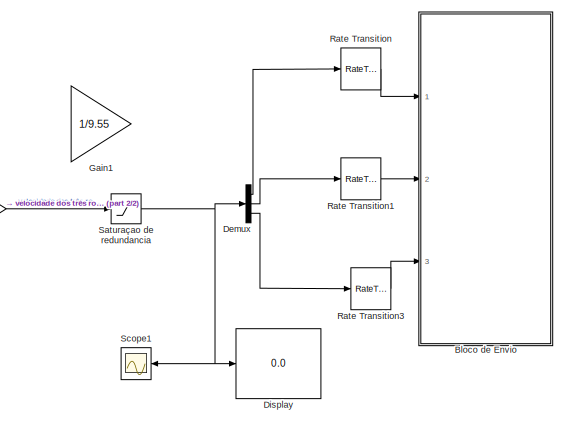
[diagram: root canvas - part 1/2, right side, full height]
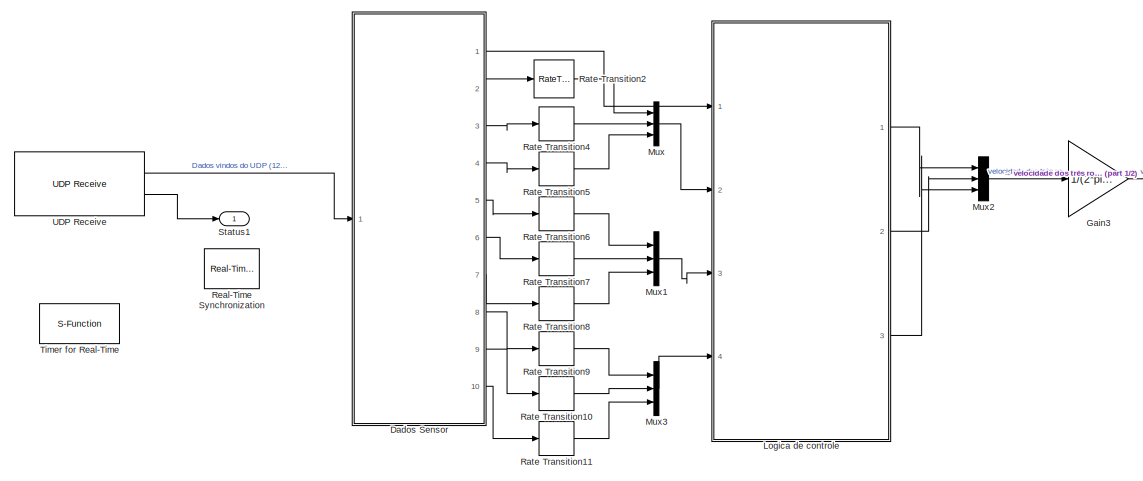
[diagram: root canvas - part 2/2, center side, full height]
MODEL slx_afa9e0316c3a
KIND model
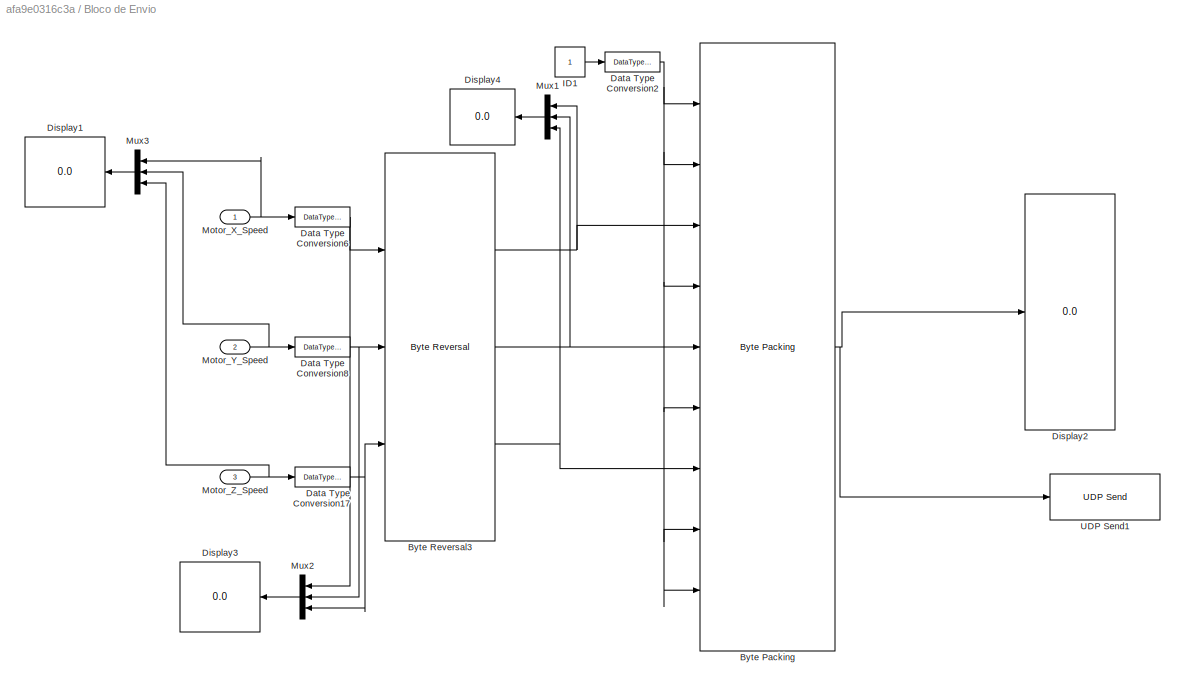
BLOCK [SubSystem] Bloco de Envio
  Ports = [3]
  RequestExecContextInheritance = off
BLOCK [Reference] Bloco de Envio/Byte Packing   REF=xpcutilitieslib/Byte Packing 
  MaskAlignment = 1
  MaskPackedDataType = uint8
  MaskUnpackedDataTypes = {'uint8','uint8','int16','uint8','int16','uint8','int16','uint8', 'uint8'}
  Ports = [9, 1]
  SourceBlock = xpcutilitieslib/Byte Packing
  SourceType = xpcbytepacking
BLOCK [Reference] Bloco de Envio/Byte Reversal3  REF=etargetslib/Byte Reversal
  Ports = [3, 3]
  SourceBlock = etargetslib/Byte Reversal
  SourceType = Byte Reversal
  numInp = 3
BLOCK [DataTypeConversion] Bloco de Envio/Data Type Conversion17
  OutDataTypeStr = int16
  RndMeth = Floor
BLOCK [DataTypeConversion] Bloco de Envio/Data Type Conversion2
  OutDataTypeStr = uint8
  RndMeth = Floor
BLOCK [DataTypeConversion] Bloco de Envio/Data Type Conversion6
  OutDataTypeStr = int16
  RndMeth = Floor
BLOCK [DataTypeConversion] Bloco de Envio/Data Type Conversion8
  OutDataTypeStr = int16
  RndMeth = Floor
BLOCK [Display] Bloco de Envio/Display1
  Decimation = 1
  Ports = [1]
BLOCK [Display] Bloco de Envio/Display2
  Decimation = 1
  Ports = [1]
BLOCK [Display] Bloco de Envio/Display3
  Decimation = 1
  Format = hex (Stored Integer)
  Ports = [1]
BLOCK [Display] Bloco de Envio/Display4
  Decimation = 1
  Format = hex (Stored Integer)
  Ports = [1]
BLOCK [Constant] Bloco de Envio/ID1
  OutDataTypeStr = uint8
BLOCK [Inport] Bloco de Envio/Motor_X_Speed
  IconDisplay = Port number
BLOCK [Inport] Bloco de Envio/Motor_Y_Speed
  IconDisplay = Port number
  Port = 2
BLOCK [Inport] Bloco de Envio/Motor_Z_Speed
  IconDisplay = Port number
  Port = 3
BLOCK [Mux] Bloco de Envio/Mux1
  DisplayOption = bar
  Inputs = 3
  Ports = [3, 1]
BLOCK [Mux] Bloco de Envio/Mux2
  DisplayOption = bar
  Inputs = 3
  Ports = [3, 1]
BLOCK [Mux] Bloco de Envio/Mux3
  DisplayOption = bar
  Inputs = 3
  Ports = [3, 1]
BLOCK [Reference] Bloco de Envio/UDP Send1  REF=instrumentlib/UDP Send
  ByteOrder = LittleEndian
  EnableBlockingMode = off
  Host = 172.16.0.62
  LocalPort = -1
  Port = 35308
  Ports = [1]
  SourceBlock = instrumentlib/UDP Send
  SourceType = UDP Send
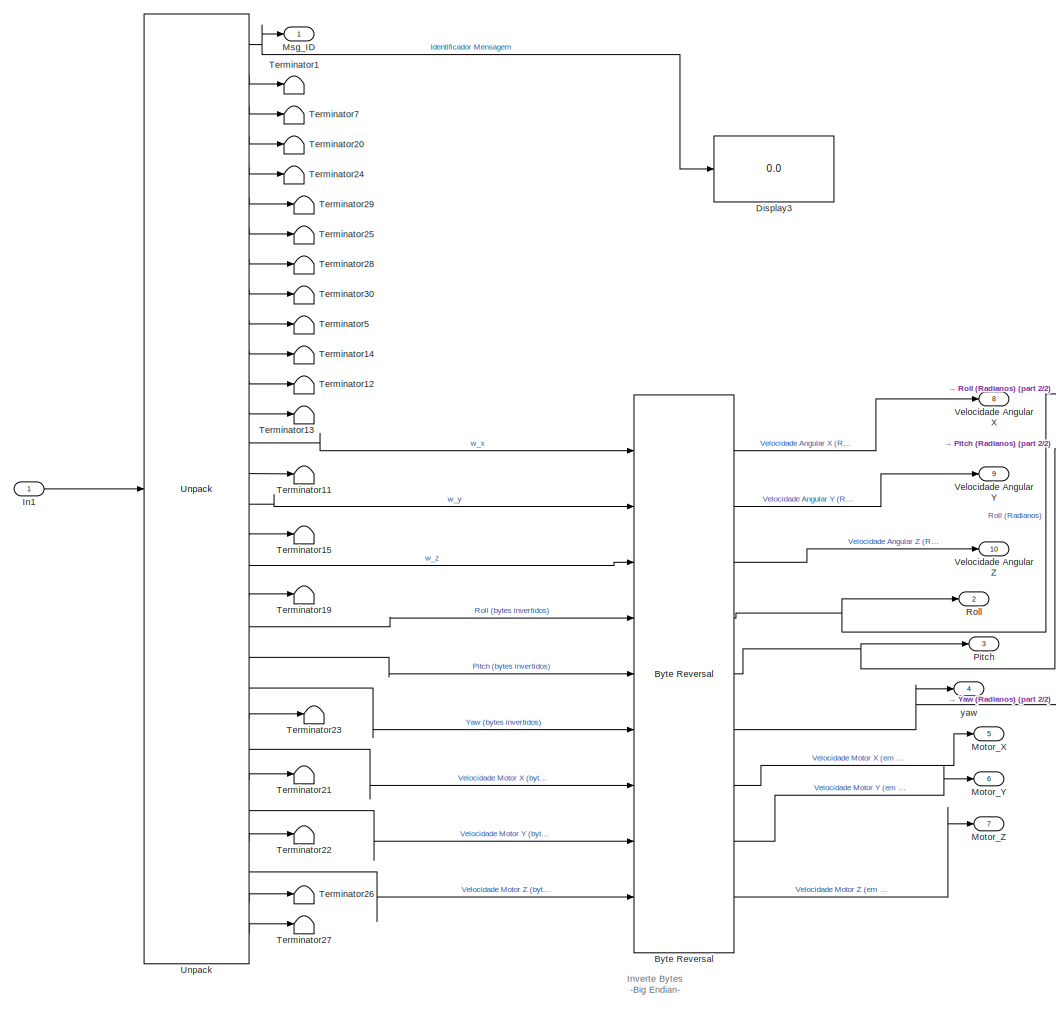
[diagram: Dados Sensor - part 1/2, most of the canvas]
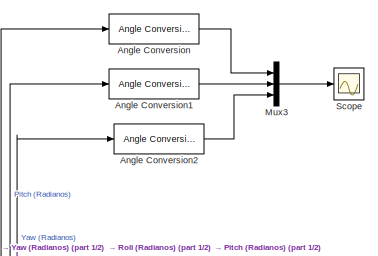
[diagram: Dados Sensor - part 2/2, middle right region]
BLOCK [SubSystem] Dados Sensor
  Ports = [1, 10]
  RequestExecContextInheritance = off
BLOCK [Reference] Dados Sensor/Angle Conversion  REF=aerolibconvert2/Angle Conversion
  IU = rad
  OU = deg
  Ports = [1, 1]
  SourceBlock = aerolibconvert2/Angle Conversion
  SourceType = Angle Conversion
BLOCK [Reference] Dados Sensor/Angle Conversion1  REF=aerolibconvert2/Angle Conversion
  IU = rad
  OU = deg
  Ports = [1, 1]
  SourceBlock = aerolibconvert2/Angle Conversion
  SourceType = Angle Conversion
BLOCK [Reference] Dados Sensor/Angle Conversion2  REF=aerolibconvert2/Angle Conversion
  IU = rad
  OU = deg
  Ports = [1, 1]
  SourceBlock = aerolibconvert2/Angle Conversion
  SourceType = Angle Conversion
BLOCK [Reference] Dados Sensor/Byte Reversal  REF=etargetslib/Byte Reversal
  Ports = [9, 9]
  SourceBlock = etargetslib/Byte Reversal
  SourceType = Byte Reversal
  numInp = 9
BLOCK [Display] Dados Sensor/Display3
  Decimation = 1
  Ports = [1]
BLOCK [Inport] Dados Sensor/In1
  IconDisplay = Port number
BLOCK [Outport] Dados Sensor/Motor_X
  IconDisplay = Port number
  Port = 5
BLOCK [Outport] Dados Sensor/Motor_Y
  IconDisplay = Port number
  Port = 6
BLOCK [Outport] Dados Sensor/Motor_Z
  IconDisplay = Port number
  Port = 7
BLOCK [Outport] Dados Sensor/Msg_ID
  IconDisplay = Port number
BLOCK [Mux] Dados Sensor/Mux3
  DisplayOption = bar
  Inputs = 3
  Ports = [3, 1]
BLOCK [Outport] Dados Sensor/Pitch
  IconDisplay = Port number
  Port = 3
BLOCK [Outport] Dados Sensor/Roll
  IconDisplay = Port number
  Port = 2
BLOCK [Scope] Dados Sensor/Scope
  DataFormat = StructureWithTime
  Floating = off
  LimitDataPoints = off
  NumInputPorts = 1
  Ports = [1]
  SampleTime = 0
  SaveName = ScopeData2
  ShowLegends = off
  YMax = 100
  YMin = -10
BLOCK [Terminator] Dados Sensor/Terminator1
BLOCK [Terminator] Dados Sensor/Terminator11
BLOCK [Terminator] Dados Sensor/Terminator12
BLOCK [Terminator] Dados Sensor/Terminator13
BLOCK [Terminator] Dados Sensor/Terminator14
BLOCK [Terminator] Dados Sensor/Terminator15
BLOCK [Terminator] Dados Sensor/Terminator19
BLOCK [Terminator] Dados Sensor/Terminator20
BLOCK [Terminator] Dados Sensor/Terminator21
BLOCK [Terminator] Dados Sensor/Terminator22
BLOCK [Terminator] Dados Sensor/Terminator23
BLOCK [Terminator] Dados Sensor/Terminator24
BLOCK [Terminator] Dados Sensor/Terminator25
BLOCK [Terminator] Dados Sensor/Terminator26
BLOCK [Terminator] Dados Sensor/Terminator27
BLOCK [Terminator] Dados Sensor/Terminator28
BLOCK [Terminator] Dados Sensor/Terminator29
BLOCK [Terminator] Dados Sensor/Terminator30
BLOCK [Terminator] Dados Sensor/Terminator5
BLOCK [Terminator] Dados Sensor/Terminator7
BLOCK [Reference] Dados Sensor/Unpack  REF=slrtlib/UDP/Unpack 
  Ports = [1, 30]
  SourceBlock = slrtlib/UDP/Unpack
  SourceType = xpcbyte2any
  byteAlign = 1
  datatypes = {'uint8','single','uint32','single','uint32','single','uint32','single','uint32','single','uint32','single','uint32','single','uint32','single','uint32','single','uint32','single','single','single','single','int16','uint32','int16','uint32','int16','uint32','uint8'}
  dimensions = {[1,1],[1,1],[1,1],[1,1],[1,1],[1,1],[1,1],[1,1],[1,1],[1,1],[1,1],[1,1],[1,1],[1,1],[1,1],[1,1],[1,1],[1,1],[1,1],[1,1],[1,1],[1,1],[1,4],[1,1],[1,1],[1,1],[1,1],[1,1],[1,1],[1,1]}
BLOCK [Outport] Dados Sensor/Velocidade Angular X
  IconDisplay = Port number
  Port = 8
BLOCK [Outport] Dados Sensor/Velocidade Angular Y
  IconDisplay = Port number
  Port = 9
BLOCK [Outport] Dados Sensor/Velocidade Angular Z
  IconDisplay = Port number
  Port = 10
BLOCK [Outport] Dados Sensor/yaw
  IconDisplay = Port number
  Port = 4
BLOCK [Demux] Demux
  DisplayOption = bar
  Outputs = 3
  Ports = [1, 3]
BLOCK [Display] Display
  Decimation = 1
  Ports = [1]
BLOCK [Gain] Gain1
  Commented = on
  Gain = 1/9.55
  OutDataTypeStr = Inherit: Inherit via internal rule
  ParamDataTypeStr = Inherit: Inherit via internal rule
BLOCK [Gain] Gain3
  Gain = 1/(2*pi/60)
  OutDataTypeStr = Inherit: Inherit via internal rule
  ParamDataTypeStr = Inherit: Inherit via internal rule
  SaturateOnIntegerOverflow = off
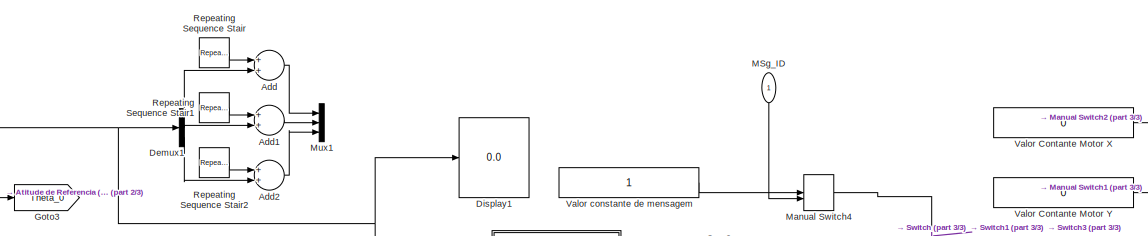
[diagram: Logica de controle - part 1/3, top center region]
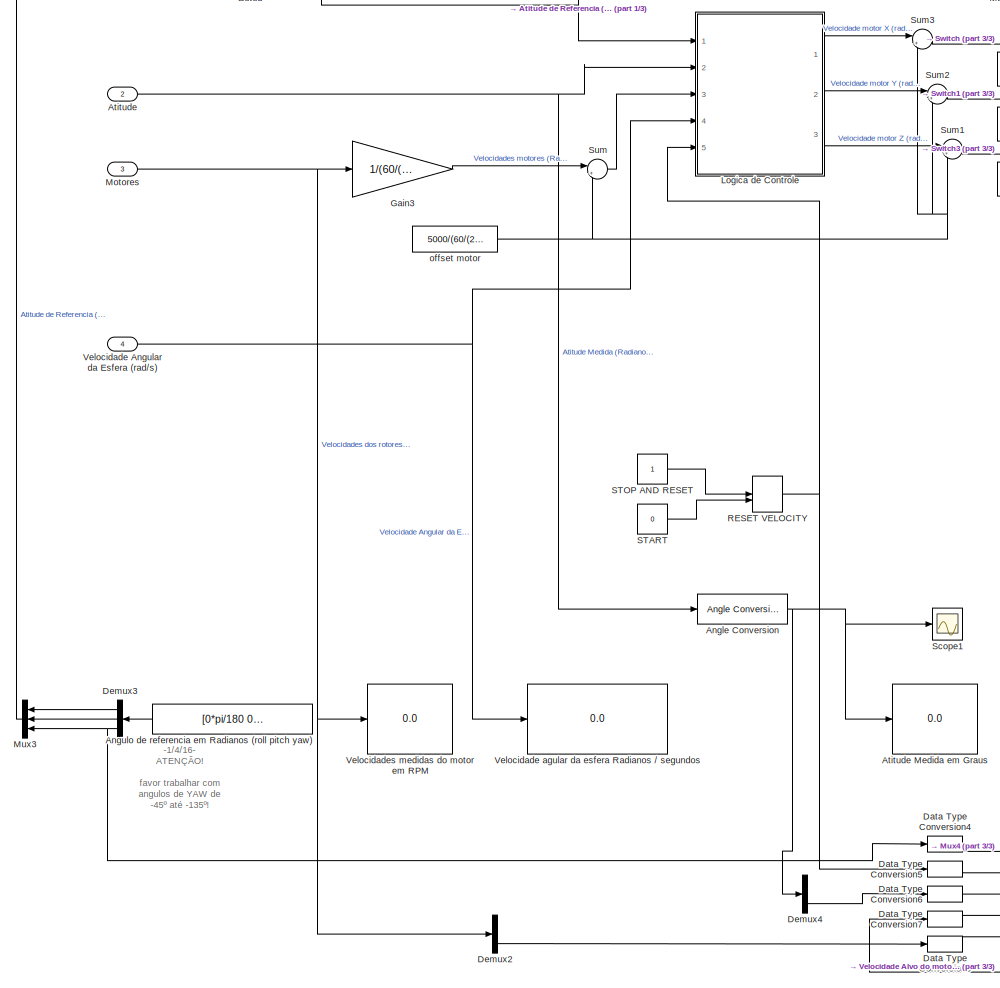
[diagram: Logica de controle - part 2/3, left side, full height]
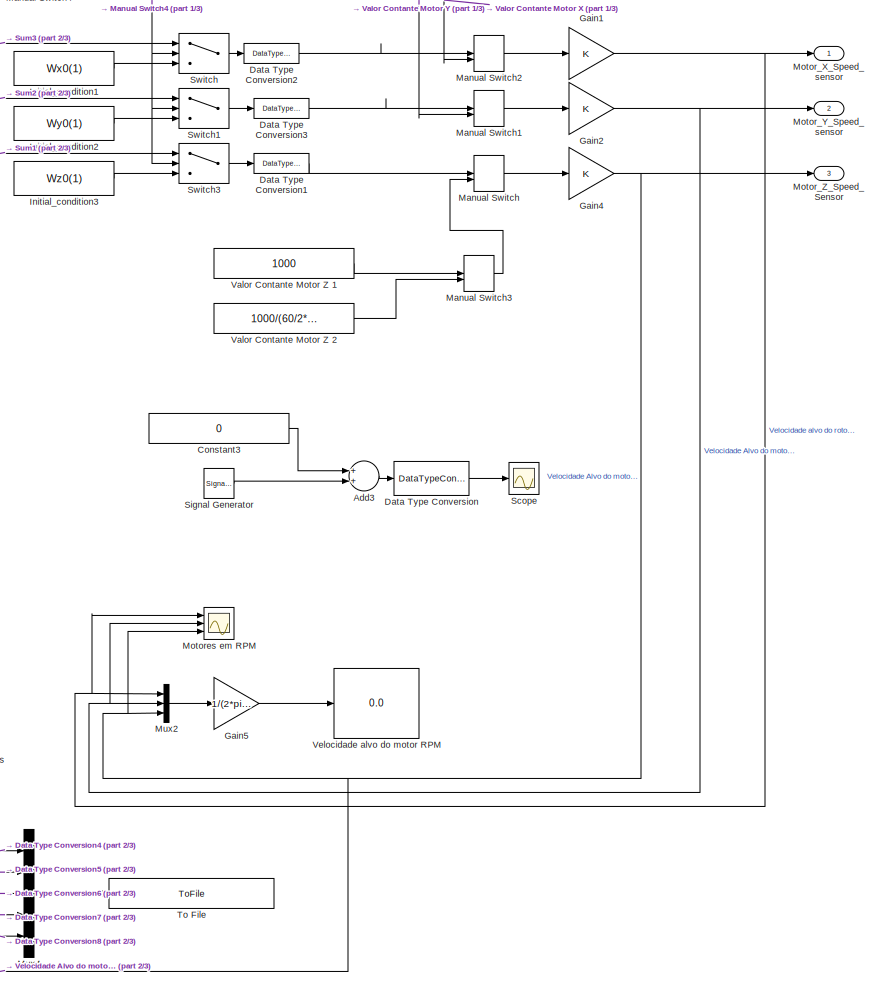
[diagram: Logica de controle - part 3/3, right side, full height]
BLOCK [SubSystem] Logica de controle
  Ports = [4, 3]
  RequestExecContextInheritance = off
BLOCK [Sum] Logica de controle/Add
  InputSameDT = off
  OutDataTypeStr = Inherit: Inherit via internal rule
  Ports = [2, 1]
  SaturateOnIntegerOverflow = off
BLOCK [Sum] Logica de controle/Add1
  InputSameDT = off
  OutDataTypeStr = Inherit: Inherit via internal rule
  Ports = [2, 1]
  SaturateOnIntegerOverflow = off
BLOCK [Sum] Logica de controle/Add2
  InputSameDT = off
  OutDataTypeStr = Inherit: Inherit via internal rule
  Ports = [2, 1]
  SaturateOnIntegerOverflow = off
BLOCK [Sum] Logica de controle/Add3
  InputSameDT = off
  OutDataTypeStr = Inherit: Inherit via internal rule
  Ports = [2, 1]
  SaturateOnIntegerOverflow = off
BLOCK [Reference] Logica de controle/Angle Conversion  REF=aerolibconvert2/Angle Conversion
  IU = rad
  OU = deg
  Ports = [1, 1]
  SourceBlock = aerolibconvert2/Angle Conversion
  SourceType = Angle Conversion
BLOCK [Constant] Logica de controle/Angulo de referencia em Radianos (roll pitch yaw)
  Value = [0*pi/180 0*pi/180 -150*pi/180]
BLOCK [Inport] Logica de controle/Atitude
  IconDisplay = Port number
  Port = 2
BLOCK [Display] Logica de controle/Atitude Medida em Graus
  Decimation = 3
  Ports = [1]
BLOCK [Constant] Logica de controle/Constant3
  OutDataTypeStr = int16
  Value = 0
BLOCK [DataTypeConversion] Logica de controle/Data Type Conversion
  OutDataTypeStr = int16
  RndMeth = Floor
  SaturateOnIntegerOverflow = off
BLOCK [DataTypeConversion] Logica de controle/Data Type Conversion1
  OutDataTypeStr = int16
  RndMeth = Floor
BLOCK [DataTypeConversion] Logica de controle/Data Type Conversion2
  OutDataTypeStr = int16
  RndMeth = Floor
BLOCK [DataTypeConversion] Logica de controle/Data Type Conversion3
  OutDataTypeStr = int16
  RndMeth = Floor
BLOCK [DataTypeConversion] Logica de controle/Data Type Conversion4
  OutDataTypeStr = double
  RndMeth = Floor
BLOCK [DataTypeConversion] Logica de controle/Data Type Conversion5
  OutDataTypeStr = double
  RndMeth = Floor
BLOCK [DataTypeConversion] Logica de controle/Data Type Conversion6
  OutDataTypeStr = double
  RndMeth = Floor
BLOCK [DataTypeConversion] Logica de controle/Data Type Conversion7
  OutDataTypeStr = double
  RndMeth = Floor
BLOCK [DataTypeConversion] Logica de controle/Data Type Conversion8
  OutDataTypeStr = double
  RndMeth = Floor
BLOCK [Demux] Logica de controle/Demux1
  DisplayOption = bar
  Outputs = 3
  Ports = [1, 3]
BLOCK [Demux] Logica de controle/Demux2
  DisplayOption = bar
  Outputs = 3
  Ports = [1, 3]
BLOCK [Demux] Logica de controle/Demux3
  DisplayOption = bar
  Outputs = 3
  Ports = [1, 3]
BLOCK [Demux] Logica de controle/Demux4
  DisplayOption = bar
  Outputs = 3
  Ports = [1, 3]
BLOCK [Display] Logica de controle/Display1
  Decimation = 1
  Ports = [1]
BLOCK [Gain] Logica de controle/Gain1
  OutDataTypeStr = int16
  ParamDataTypeStr = Inherit: Inherit via internal rule
BLOCK [Gain] Logica de controle/Gain2
  OutDataTypeStr = int16
  ParamDataTypeStr = Inherit: Inherit via internal rule
BLOCK [Gain] Logica de controle/Gain3
  Gain = 1/(60/(2*pi))
  OutDataTypeStr = Inherit: Inherit via internal rule
  ParamDataTypeStr = Inherit: Inherit via internal rule
  SaturateOnIntegerOverflow = off
BLOCK [Gain] Logica de controle/Gain4
  OutDataTypeStr = int16
  ParamDataTypeStr = Inherit: Inherit via internal rule
BLOCK [Gain] Logica de controle/Gain5
  Gain = 1/(2*pi/60)
  OutDataTypeStr = int16
  ParamDataTypeStr = Inherit: Inherit via internal rule
BLOCK [Goto] Logica de controle/Goto3
  GotoTag = Theta_0
BLOCK [Constant] Logica de controle/Initial_condition1
  OutDataTypeStr = int16
  Value = Wx0(1)
BLOCK [Constant] Logica de controle/Initial_condition2
  OutDataTypeStr = int16
  Value = Wy0(1)
BLOCK [Constant] Logica de controle/Initial_condition3
  OutDataTypeStr = int16
  Value = Wz0(1)
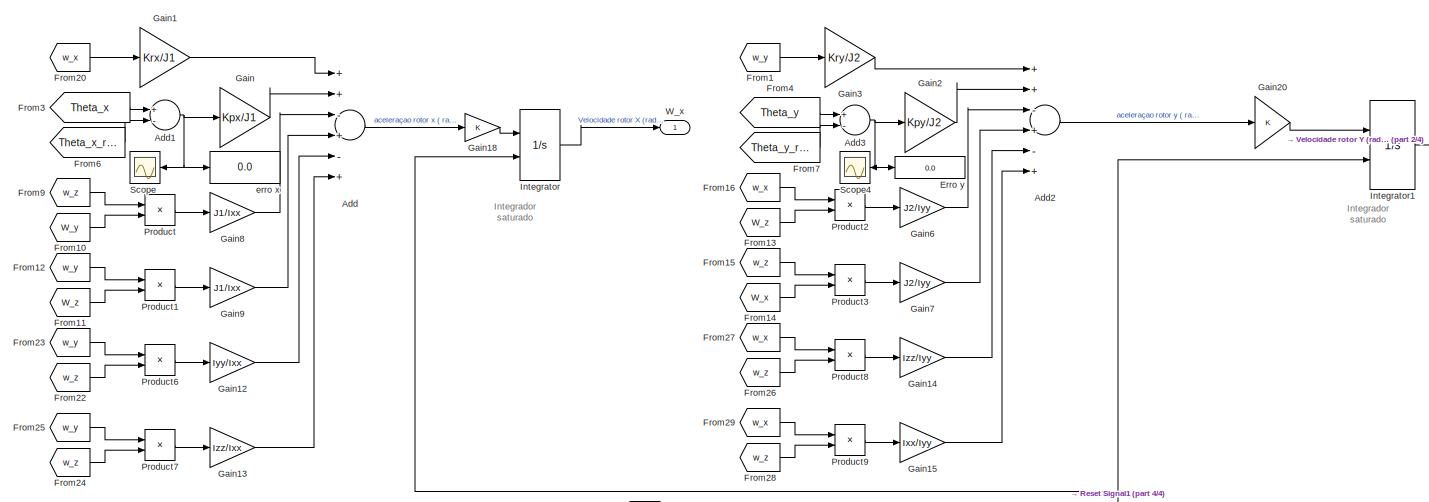
[diagram: Logica de controle/Logica de Controle - part 1/4, top center region]
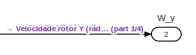
[diagram: Logica de controle/Logica de Controle - part 2/4, top right region]
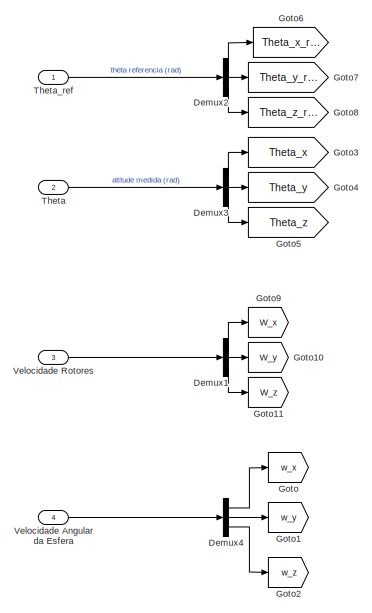
[diagram: Logica de controle/Logica de Controle - part 3/4, middle left region]
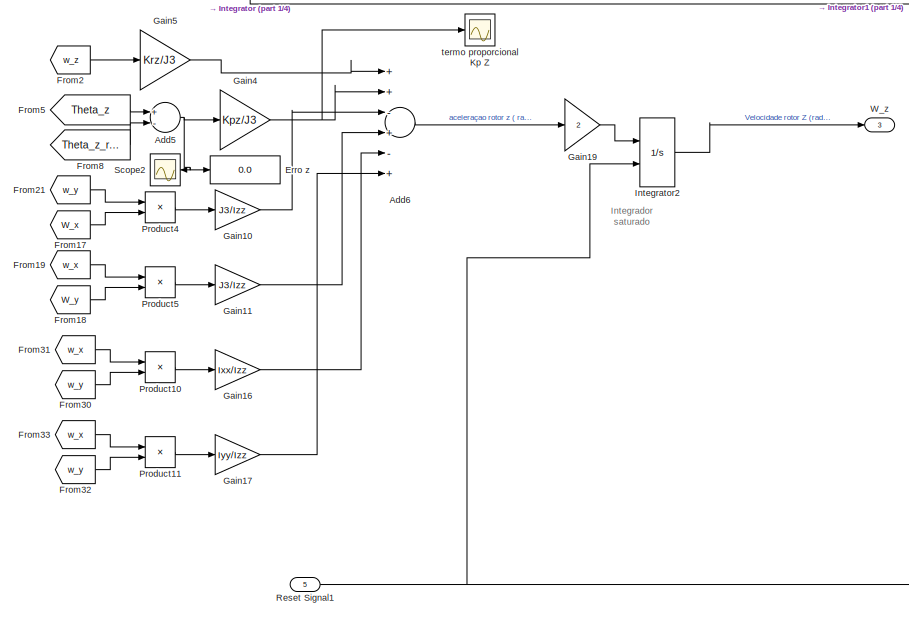
[diagram: Logica de controle/Logica de Controle - part 4/4, bottom center region]
BLOCK [SubSystem] Logica de controle/Logica de Controle
  Ports = [5, 3]
  RequestExecContextInheritance = off
BLOCK [Sum] Logica de controle/Logica de Controle/Add
  InputSameDT = off
  Inputs = ++-+-+
  OutDataTypeStr = Inherit: Inherit via internal rule
  Ports = [6, 1]
  SaturateOnIntegerOverflow = off
BLOCK [Sum] Logica de controle/Logica de Controle/Add1
  InputSameDT = off
  Inputs = +-
  OutDataTypeStr = Inherit: Inherit via internal rule
  Ports = [2, 1]
  SaturateOnIntegerOverflow = off
BLOCK [Sum] Logica de controle/Logica de Controle/Add2
  InputSameDT = off
  Inputs = ++-+-+
  OutDataTypeStr = Inherit: Inherit via internal rule
  Ports = [6, 1]
  SaturateOnIntegerOverflow = off
BLOCK [Sum] Logica de controle/Logica de Controle/Add3
  InputSameDT = off
  Inputs = +-
  OutDataTypeStr = Inherit: Inherit via internal rule
  Ports = [2, 1]
  SaturateOnIntegerOverflow = off
BLOCK [Sum] Logica de controle/Logica de Controle/Add5
  InputSameDT = off
  Inputs = +-
  OutDataTypeStr = Inherit: Inherit via internal rule
  Ports = [2, 1]
  SaturateOnIntegerOverflow = off
BLOCK [Sum] Logica de controle/Logica de Controle/Add6
  InputSameDT = off
  Inputs = ++-+-+
  OutDataTypeStr = Inherit: Inherit via internal rule
  Ports = [6, 1]
  SaturateOnIntegerOverflow = off
BLOCK [Demux] Logica de controle/Logica de Controle/Demux1
  DisplayOption = bar
  Outputs = 3
  Ports = [1, 3]
BLOCK [Demux] Logica de controle/Logica de Controle/Demux2
  DisplayOption = bar
  Outputs = 3
  Ports = [1, 3]
BLOCK [Demux] Logica de controle/Logica de Controle/Demux3
  DisplayOption = bar
  Outputs = 3
  Ports = [1, 3]
BLOCK [Demux] Logica de controle/Logica de Controle/Demux4
  DisplayOption = bar
  Outputs = 3
  Ports = [1, 3]
BLOCK [Display] Logica de controle/Logica de Controle/Erro y
  Decimation = 1
  Ports = [1]
BLOCK [Display] Logica de controle/Logica de Controle/Erro z
  Decimation = 1
  Ports = [1]
BLOCK [From] Logica de controle/Logica de Controle/From1
  GotoTag = w_y
BLOCK [From] Logica de controle/Logica de Controle/From10
  GotoTag = W_y
BLOCK [From] Logica de controle/Logica de Controle/From11
  GotoTag = W_z
BLOCK [From] Logica de controle/Logica de Controle/From12
  GotoTag = w_y
BLOCK [From] Logica de controle/Logica de Controle/From13
  GotoTag = W_z
BLOCK [From] Logica de controle/Logica de Controle/From14
  GotoTag = W_x
BLOCK [From] Logica de controle/Logica de Controle/From15
  GotoTag = w_z
BLOCK [From] Logica de controle/Logica de Controle/From16
  GotoTag = w_x
BLOCK [From] Logica de controle/Logica de Controle/From17
  GotoTag = W_x
BLOCK [From] Logica de controle/Logica de Controle/From18
  GotoTag = W_y
BLOCK [From] Logica de controle/Logica de Controle/From19
  GotoTag = w_x
BLOCK [From] Logica de controle/Logica de Controle/From2
  GotoTag = w_z
BLOCK [From] Logica de controle/Logica de Controle/From20
  GotoTag = w_x
BLOCK [From] Logica de controle/Logica de Controle/From21
  GotoTag = w_y
BLOCK [From] Logica de controle/Logica de Controle/From22
  GotoTag = w_z
BLOCK [From] Logica de controle/Logica de Controle/From23
  GotoTag = w_y
BLOCK [From] Logica de controle/Logica de Controle/From24
  GotoTag = w_z
BLOCK [From] Logica de controle/Logica de Controle/From25
  GotoTag = w_y
BLOCK [From] Logica de controle/Logica de Controle/From26
  GotoTag = w_z
BLOCK [From] Logica de controle/Logica de Controle/From27
  GotoTag = w_x
BLOCK [From] Logica de controle/Logica de Controle/From28
  GotoTag = w_z
BLOCK [From] Logica de controle/Logica de Controle/From29
  GotoTag = w_x
BLOCK [From] Logica de controle/Logica de Controle/From3
  GotoTag = Theta_x
BLOCK [From] Logica de controle/Logica de Controle/From30
  GotoTag = w_y
BLOCK [From] Logica de controle/Logica de Controle/From31
  GotoTag = w_x
BLOCK [From] Logica de controle/Logica de Controle/From32
  GotoTag = w_y
BLOCK [From] Logica de controle/Logica de Controle/From33
  GotoTag = w_x
BLOCK [From] Logica de controle/Logica de Controle/From4
  GotoTag = Theta_y
BLOCK [From] Logica de controle/Logica de Controle/From5
  GotoTag = Theta_z
BLOCK [From] Logica de controle/Logica de Controle/From6
  GotoTag = Theta_x_ref
BLOCK [From] Logica de controle/Logica de Controle/From7
  GotoTag = Theta_y_ref
BLOCK [From] Logica de controle/Logica de Controle/From8
  GotoTag = Theta_z_ref
BLOCK [From] Logica de controle/Logica de Controle/From9
  GotoTag = w_z
BLOCK [Gain] Logica de controle/Logica de Controle/Gain
  Gain = Kpx/J1
  OutDataTypeStr = Inherit: Inherit via internal rule
  ParamDataTypeStr = Inherit: Inherit via internal rule
  SaturateOnIntegerOverflow = off
BLOCK [Gain] Logica de controle/Logica de Controle/Gain1
  Gain = Krx/J1
  OutDataTypeStr = Inherit: Inherit via internal rule
  ParamDataTypeStr = Inherit: Inherit via internal rule
  SaturateOnIntegerOverflow = off
BLOCK [Gain] Logica de controle/Logica de Controle/Gain10
  Gain = J3/Izz
  OutDataTypeStr = Inherit: Inherit via internal rule
  ParamDataTypeStr = Inherit: Inherit via internal rule
  SaturateOnIntegerOverflow = off
BLOCK [Gain] Logica de controle/Logica de Controle/Gain11
  Gain = J3/Izz
  OutDataTypeStr = Inherit: Inherit via internal rule
  ParamDataTypeStr = Inherit: Inherit via internal rule
  SaturateOnIntegerOverflow = off
BLOCK [Gain] Logica de controle/Logica de Controle/Gain12
  Gain = Iyy/Ixx
  OutDataTypeStr = Inherit: Inherit via internal rule
  ParamDataTypeStr = Inherit: Inherit via internal rule
  SaturateOnIntegerOverflow = off
BLOCK [Gain] Logica de controle/Logica de Controle/Gain13
  Gain = Izz/Ixx
  OutDataTypeStr = Inherit: Inherit via internal rule
  ParamDataTypeStr = Inherit: Inherit via internal rule
  SaturateOnIntegerOverflow = off
BLOCK [Gain] Logica de controle/Logica de Controle/Gain14
  Gain = Izz/Iyy
  OutDataTypeStr = Inherit: Inherit via internal rule
  ParamDataTypeStr = Inherit: Inherit via internal rule
  SaturateOnIntegerOverflow = off
BLOCK [Gain] Logica de controle/Logica de Controle/Gain15
  Gain = Ixx/Iyy
  OutDataTypeStr = Inherit: Inherit via internal rule
  ParamDataTypeStr = Inherit: Inherit via internal rule
  SaturateOnIntegerOverflow = off
BLOCK [Gain] Logica de controle/Logica de Controle/Gain16
  Gain = Ixx/Izz
  OutDataTypeStr = Inherit: Inherit via internal rule
  ParamDataTypeStr = Inherit: Inherit via internal rule
  SaturateOnIntegerOverflow = off
BLOCK [Gain] Logica de controle/Logica de Controle/Gain17
  Gain = Iyy/Izz
  OutDataTypeStr = Inherit: Inherit via internal rule
  ParamDataTypeStr = Inherit: Inherit via internal rule
  SaturateOnIntegerOverflow = off
BLOCK [Gain] Logica de controle/Logica de Controle/Gain18
  OutDataTypeStr = Inherit: Inherit via internal rule
  ParamDataTypeStr = Inherit: Inherit via internal rule
BLOCK [Gain] Logica de controle/Logica de Controle/Gain19
  Gain = 2
  OutDataTypeStr = Inherit: Inherit via internal rule
  ParamDataTypeStr = Inherit: Inherit via internal rule
BLOCK [Gain] Logica de controle/Logica de Controle/Gain2
  Gain = Kpy/J2
  OutDataTypeStr = Inherit: Inherit via internal rule
  ParamDataTypeStr = Inherit: Inherit via internal rule
  SaturateOnIntegerOverflow = off
BLOCK [Gain] Logica de controle/Logica de Controle/Gain20
  OutDataTypeStr = Inherit: Inherit via internal rule
  ParamDataTypeStr = Inherit: Inherit via internal rule
BLOCK [Gain] Logica de controle/Logica de Controle/Gain3
  Gain = Kry/J2
  OutDataTypeStr = Inherit: Inherit via internal rule
  ParamDataTypeStr = Inherit: Inherit via internal rule
  SaturateOnIntegerOverflow = off
BLOCK [Gain] Logica de controle/Logica de Controle/Gain4
  Gain = Kpz/J3
  OutDataTypeStr = Inherit: Inherit via internal rule
  ParamDataTypeStr = Inherit: Inherit via internal rule
  SaturateOnIntegerOverflow = off
BLOCK [Gain] Logica de controle/Logica de Controle/Gain5
  Gain = Krz/J3
  OutDataTypeStr = Inherit: Inherit via internal rule
  ParamDataTypeStr = Inherit: Inherit via internal rule
  SaturateOnIntegerOverflow = off
BLOCK [Gain] Logica de controle/Logica de Controle/Gain6
  Gain = J2/Iyy
  OutDataTypeStr = Inherit: Inherit via internal rule
  ParamDataTypeStr = Inherit: Inherit via internal rule
  SaturateOnIntegerOverflow = off
BLOCK [Gain] Logica de controle/Logica de Controle/Gain7
  Gain = J2/Iyy
  OutDataTypeStr = Inherit: Inherit via internal rule
  ParamDataTypeStr = Inherit: Inherit via internal rule
  SaturateOnIntegerOverflow = off
BLOCK [Gain] Logica de controle/Logica de Controle/Gain8
  Gain = J1/Ixx
  OutDataTypeStr = Inherit: Inherit via internal rule
  ParamDataTypeStr = Inherit: Inherit via internal rule
  SaturateOnIntegerOverflow = off
BLOCK [Gain] Logica de controle/Logica de Controle/Gain9
  Gain = J1/Ixx
  OutDataTypeStr = Inherit: Inherit via internal rule
  ParamDataTypeStr = Inherit: Inherit via internal rule
  SaturateOnIntegerOverflow = off
BLOCK [Goto] Logica de controle/Logica de Controle/Goto
  GotoTag = w_x
BLOCK [Goto] Logica de controle/Logica de Controle/Goto1
  GotoTag = w_y
BLOCK [Goto] Logica de controle/Logica de Controle/Goto10
  GotoTag = W_y
BLOCK [Goto] Logica de controle/Logica de Controle/Goto11
  GotoTag = W_z
BLOCK [Goto] Logica de controle/Logica de Controle/Goto2
  GotoTag = w_z
BLOCK [Goto] Logica de controle/Logica de Controle/Goto3
  GotoTag = Theta_x
BLOCK [Goto] Logica de controle/Logica de Controle/Goto4
  GotoTag = Theta_y
BLOCK [Goto] Logica de controle/Logica de Controle/Goto5
  GotoTag = Theta_z
BLOCK [Goto] Logica de controle/Logica de Controle/Goto6
  GotoTag = Theta_x_ref
BLOCK [Goto] Logica de controle/Logica de Controle/Goto7
  GotoTag = Theta_y_ref
BLOCK [Goto] Logica de controle/Logica de Controle/Goto8
  GotoTag = Theta_z_ref
BLOCK [Goto] Logica de controle/Logica de Controle/Goto9
  GotoTag = W_x
BLOCK [Integrator] Logica de controle/Logica de Controle/Integrator
  ExternalReset = level
  InitialCondition = Wx0(1)
  LimitOutput = on
  LowerSaturationLimit = -4500*2*pi/60
  Ports = [2, 1]
  UpperSaturationLimit = 4500*2*pi/60
BLOCK [Integrator] Logica de controle/Logica de Controle/Integrator1
  ExternalReset = level
  InitialCondition = Wy0(1)
  LimitOutput = on
  LowerSaturationLimit = -4000*2*pi/60
  Ports = [2, 1]
  UpperSaturationLimit = 4500*2*pi/60
BLOCK [Integrator] Logica de controle/Logica de Controle/Integrator2
  ExternalReset = level
  InitialCondition = Wz0(1)
  LimitOutput = on
  LowerSaturationLimit = -4500*2*pi/60
  Ports = [2, 1]
  UpperSaturationLimit = 4500*2*pi/60
BLOCK [Product] Logica de controle/Logica de Controle/Product
  InputSameDT = off
  OutDataTypeStr = Inherit: Inherit via internal rule
  Ports = [2, 1]
  SaturateOnIntegerOverflow = off
BLOCK [Product] Logica de controle/Logica de Controle/Product1
  InputSameDT = off
  OutDataTypeStr = Inherit: Inherit via internal rule
  Ports = [2, 1]
  SaturateOnIntegerOverflow = off
BLOCK [Product] Logica de controle/Logica de Controle/Product10
  InputSameDT = off
  OutDataTypeStr = Inherit: Inherit via internal rule
  Ports = [2, 1]
  SaturateOnIntegerOverflow = off
BLOCK [Product] Logica de controle/Logica de Controle/Product11
  InputSameDT = off
  OutDataTypeStr = Inherit: Inherit via internal rule
  Ports = [2, 1]
  SaturateOnIntegerOverflow = off
BLOCK [Product] Logica de controle/Logica de Controle/Product2
  InputSameDT = off
  OutDataTypeStr = Inherit: Inherit via internal rule
  Ports = [2, 1]
  SaturateOnIntegerOverflow = off
BLOCK [Product] Logica de controle/Logica de Controle/Product3
  InputSameDT = off
  OutDataTypeStr = Inherit: Inherit via internal rule
  Ports = [2, 1]
  SaturateOnIntegerOverflow = off
BLOCK [Product] Logica de controle/Logica de Controle/Product4
  InputSameDT = off
  OutDataTypeStr = Inherit: Inherit via internal rule
  Ports = [2, 1]
  SaturateOnIntegerOverflow = off
BLOCK [Product] Logica de controle/Logica de Controle/Product5
  InputSameDT = off
  OutDataTypeStr = Inherit: Inherit via internal rule
  Ports = [2, 1]
  SaturateOnIntegerOverflow = off
BLOCK [Product] Logica de controle/Logica de Controle/Product6
  InputSameDT = off
  OutDataTypeStr = Inherit: Inherit via internal rule
  Ports = [2, 1]
  SaturateOnIntegerOverflow = off
BLOCK [Product] Logica de controle/Logica de Controle/Product7
  InputSameDT = off
  OutDataTypeStr = Inherit: Inherit via internal rule
  Ports = [2, 1]
  SaturateOnIntegerOverflow = off
BLOCK [Product] Logica de controle/Logica de Controle/Product8
  InputSameDT = off
  OutDataTypeStr = Inherit: Inherit via internal rule
  Ports = [2, 1]
  SaturateOnIntegerOverflow = off
BLOCK [Product] Logica de controle/Logica de Controle/Product9
  InputSameDT = off
  OutDataTypeStr = Inherit: Inherit via internal rule
  Ports = [2, 1]
  SaturateOnIntegerOverflow = off
BLOCK [Inport] Logica de controle/Logica de Controle/Reset Signal1
  IconDisplay = Port number
  Port = 5
BLOCK [Scope] Logica de controle/Logica de Controle/Scope
  Floating = off
  NumInputPorts = 1
  Ports = [1]
  SampleTime = 0
  SaveName = ErroX
  SaveToWorkspace = on
  ShowLegends = off
  TimeRange = 2
  YMax = 0.6000000000000001
  YMin = -0.8
BLOCK [Scope] Logica de controle/Logica de Controle/Scope2
  DataFormat = StructureWithTime
  Floating = off
  NumInputPorts = 1
  Ports = [1]
  SampleTime = 0
  SaveName = ScopeData3
  ShowLegends = off
  YMax = -0.2
  YMin = -0.33
BLOCK [Scope] Logica de controle/Logica de Controle/Scope4
  DataFormat = StructureWithTime
  Floating = off
  NumInputPorts = 1
  Ports = [1]
  SampleTime = 0
  SaveName = ScopeData5
  ShowLegends = off
  TimeRange = 2
  YMax = 0
  YMin = -0.35
BLOCK [Inport] Logica de controle/Logica de Controle/Theta
  IconDisplay = Port number
  Port = 2
BLOCK [Inport] Logica de controle/Logica de Controle/Theta_ref
  IconDisplay = Port number
BLOCK [Inport] Logica de controle/Logica de Controle/Velocidade Angular da Esfera
  IconDisplay = Port number
  Port = 4
BLOCK [Inport] Logica de controle/Logica de Controle/Velocidade Rotores
  IconDisplay = Port number
  Port = 3
BLOCK [Outport] Logica de controle/Logica de Controle/W_x
  IconDisplay = Port number
BLOCK [Outport] Logica de controle/Logica de Controle/W_y
  IconDisplay = Port number
  Port = 2
BLOCK [Outport] Logica de controle/Logica de Controle/W_z
  IconDisplay = Port number
  Port = 3
BLOCK [Display] Logica de controle/Logica de Controle/erro x
  Decimation = 1
  Ports = [1]
BLOCK [Scope] Logica de controle/Logica de Controle/termo proporcional Kp Z
  DataFormat = StructureWithTime
  Floating = off
  LimitDataPoints = off
  NumInputPorts = 1
  Ports = [1]
  SampleTime = 0
  SaveName = ScopeData7
  ShowLegends = off
  YMax = 1.25
  YMin = -2.25
BLOCK [Inport] Logica de controle/MSg_ID
  IconDisplay = Port number
BLOCK [ManualSwitch] Logica de controle/Manual Switch
BLOCK [ManualSwitch] Logica de controle/Manual Switch1
  CurrentSetting = 0
BLOCK [ManualSwitch] Logica de controle/Manual Switch2
  CurrentSetting = 0
BLOCK [ManualSwitch] Logica de controle/Manual Switch3
BLOCK [ManualSwitch] Logica de controle/Manual Switch4
  CurrentSetting = 0
BLOCK [Outport] Logica de controle/Motor_X_Speed_sensor
  IconDisplay = Port number
BLOCK [Outport] Logica de controle/Motor_Y_Speed_sensor
  IconDisplay = Port number
  Port = 2
BLOCK [Outport] Logica de controle/Motor_Z_Speed_Sensor
  IconDisplay = Port number
  OutDataTypeStr = int16
  Port = 3
BLOCK [Inport] Logica de controle/Motores
  IconDisplay = Port number
  Port = 3
BLOCK [Scope] Logica de controle/Motores em RPM
  DataFormat = StructureWithTime
  Floating = off
  LimitDataPoints = off
  NumInputPorts = 3
  Ports = [3]
  SampleTime = 0
  SaveName = sinal_referencia2
  SaveToWorkspace = on
  ShowLegends = off
  YMax = 1000~5~5
  YMin = 0~-5~-5
BLOCK [Mux] Logica de controle/Mux1
  DisplayOption = bar
  Inputs = 3
  Ports = [3, 1]
BLOCK [Mux] Logica de controle/Mux2
  DisplayOption = bar
  Inputs = 3
  Ports = [3, 1]
BLOCK [Mux] Logica de controle/Mux3
  DisplayOption = bar
  Inputs = 3
  Ports = [3, 1]
BLOCK [Mux] Logica de controle/Mux4
  DisplayOption = bar
  Inputs = 5
  Ports = [5, 1]
BLOCK [ManualSwitch] Logica de controle/RESET VELOCITY
  CurrentSetting = 0
BLOCK [Reference] Logica de controle/Repeating Sequence Stair  REF=simulink/Sources/Repeating
Sequence
Stair
  ConRadixGroup = Best Precision: Vector-wise
  LockScale = off
  OutDataType = fixdt(0,8)
  OutDataTypeStr = double
  OutMax = []
  OutMin = []
  OutScaling = 2^-12
  OutValues = in1.'
  OutputDataTypeScalingMode = double
  Ports = [0, 1]
  SourceBlock = simulink/Sources/Repeating\nSequence\nStair
  SourceType = Repeating Sequence Stair
  tsamp = 1000
BLOCK [Reference] Logica de controle/Repeating Sequence Stair1  REF=simulink/Sources/Repeating
Sequence
Stair
  ConRadixGroup = Best Precision: Vector-wise
  LockScale = off
  OutDataType = fixdt(0,8)
  OutDataTypeStr = double
  OutMax = []
  OutMin = []
  OutScaling = 2^-12
  OutValues = in2.'
  OutputDataTypeScalingMode = double
  Ports = [0, 1]
  SourceBlock = simulink/Sources/Repeating\nSequence\nStair
  SourceType = Repeating Sequence Stair
  tsamp = 1000
BLOCK [Reference] Logica de controle/Repeating Sequence Stair2  REF=simulink/Sources/Repeating
Sequence
Stair
  ConRadixGroup = Best Precision: Vector-wise
  LockScale = off
  OutDataType = fixdt(0,8)
  OutDataTypeStr = double
  OutMax = []
  OutMin = []
  OutScaling = 2^-12
  OutValues = in3.'
  OutputDataTypeScalingMode = double
  Ports = [0, 1]
  SourceBlock = simulink/Sources/Repeating\nSequence\nStair
  SourceType = Repeating Sequence Stair
  tsamp = 1000
BLOCK [Constant] Logica de controle/START
  OutDataTypeStr = boolean
  Value = 0
BLOCK [Constant] Logica de controle/STOP AND RESET
  OutDataTypeStr = boolean
BLOCK [Scope] Logica de controle/Scope
  DataFormat = StructureWithTime
  Floating = off
  LimitDataPoints = off
  NumInputPorts = 1
  Ports = [1]
  SampleTime = 0
  SaveName = sinal_referencia
  SaveToWorkspace = on
  ShowLegends = off
  YMax = -950
  YMin = -1050
BLOCK [Scope] Logica de controle/Scope1
  DataFormat = StructureWithTime
  Floating = off
  LimitDataPoints = off
  NumInputPorts = 1
  Ports = [1]
  SampleTime = 0
  SaveName = ScopeData4
  ShowLegends = off
  YMax = 25
  YMin = -175
BLOCK [SignalGenerator] Logica de controle/Signal Generator
  Amplitude = 1000
  Frequency = 0.1
  Ports = [0, 1]
  WaveForm = square
BLOCK [Sum] Logica de controle/Sum
  IconShape = round
  InputSameDT = off
  Inputs = |++
  OutDataTypeStr = Inherit: Inherit via internal rule
  Ports = [2, 1]
  SaturateOnIntegerOverflow = off
BLOCK [Sum] Logica de controle/Sum1
  IconShape = round
  InputSameDT = off
  Inputs = |+-
  OutDataTypeStr = Inherit: Inherit via internal rule
  Ports = [2, 1]
  SaturateOnIntegerOverflow = off
BLOCK [Sum] Logica de controle/Sum2
  IconShape = round
  InputSameDT = off
  Inputs = |+-
  OutDataTypeStr = Inherit: Inherit via internal rule
  Ports = [2, 1]
  SaturateOnIntegerOverflow = off
BLOCK [Sum] Logica de controle/Sum3
  IconShape = round
  InputSameDT = off
  Inputs = |+-
  OutDataTypeStr = Inherit: Inherit via internal rule
  Ports = [2, 1]
  SaturateOnIntegerOverflow = off
BLOCK [Switch] Logica de controle/Switch
  Criteria = u2 > Threshold
  InputSameDT = off
  OutDataTypeStr = int16
  SaturateOnIntegerOverflow = off
BLOCK [Switch] Logica de controle/Switch1
  Criteria = u2 > Threshold
  InputSameDT = off
  OutDataTypeStr = int16
  SaturateOnIntegerOverflow = off
BLOCK [Switch] Logica de controle/Switch3
  Criteria = u2 > Threshold
  InputSameDT = off
  OutDataTypeStr = int16
  SaturateOnIntegerOverflow = off
BLOCK [ToFile] Logica de controle/To File
  Filename = Yawtest.mat
  MatrixName = test_var
  Ports = [1]
BLOCK [Constant] Logica de controle/Valor Contante Motor X
  OutDataTypeStr = int16
  Value = 0
BLOCK [Constant] Logica de controle/Valor Contante Motor Y
  OutDataTypeStr = int16
  Value = 0
BLOCK [Constant] Logica de controle/Valor Contante Motor Z 1
  OutDataTypeStr = int16
  Value = 1000
BLOCK [Constant] Logica de controle/Valor Contante Motor Z 2
  OutDataTypeStr = int16
  Value = 1000/(60/2*pi)
BLOCK [Constant] Logica de controle/Valor constante de mensagem
  OutDataTypeStr = int16
BLOCK [Inport] Logica de controle/Velocidade Angular da Esfera (rad//s)
  IconDisplay = Port number
  Port = 4
BLOCK [Display] Logica de controle/Velocidade agular da esfera Radianos // segundos
  Decimation = 3
  Format = decimal (Stored Integer)
  Ports = [1]
BLOCK [Display] Logica de controle/Velocidade alvo do motor RPM
  Decimation = 3
  Ports = [1]
BLOCK [Display] Logica de controle/Velocidades medidas do motor em RPM
  Decimation = 3
  Ports = [1]
BLOCK [Constant] Logica de controle/offset motor
  OutDataTypeStr = boolean
  Value = 5000/(60/(2*pi))
BLOCK [Mux] Mux
  DisplayOption = bar
  Inputs = 3
  Ports = [3, 1]
BLOCK [Mux] Mux1
  DisplayOption = bar
  Inputs = 3
  Ports = [3, 1]
BLOCK [Mux] Mux2
  DisplayOption = bar
  Inputs = 3
  Ports = [3, 1]
BLOCK [Mux] Mux3
  DisplayOption = bar
  Inputs = 3
  Ports = [3, 1]
BLOCK [RateTransition] Rate Transition
  OutPortSampleTime = t
BLOCK [RateTransition] Rate Transition1
  OutPortSampleTime = t
BLOCK [RateTransition] Rate Transition10
  OutPortSampleTime = t
BLOCK [RateTransition] Rate Transition11
  OutPortSampleTime = t
BLOCK [RateTransition] Rate Transition2
  OutPortSampleTime = t
BLOCK [RateTransition] Rate Transition3
  OutPortSampleTime = t
BLOCK [RateTransition] Rate Transition4
  OutPortSampleTime = t
BLOCK [RateTransition] Rate Transition5
  OutPortSampleTime = t
BLOCK [RateTransition] Rate Transition6
  OutPortSampleTime = t
BLOCK [RateTransition] Rate Transition7
  OutPortSampleTime = t
BLOCK [RateTransition] Rate Transition8
  OutPortSampleTime = t
BLOCK [RateTransition] Rate Transition9
  OutPortSampleTime = t
BLOCK [Reference] Real-Time Synchronization  REF=rtwinlib/Real-Time
Synchronization
  Commented = on
  MaxMissedTicks = 20
  Ports = []
  SampleTime = 0.1
  ShowMissedTicks = off
  SourceBlock = rtwinlib/Real-Time\nSynchronization
  SourceType = RTWin Real-Time Synchronization
  YieldWhenWaiting = off
BLOCK [Saturate] Saturaçao de redundancia
  InputPortMap = u0
  LowerLimit = -4000
  Ports = [1, 1]
  UpperLimit = 4000
BLOCK [Scope] Scope1
  DataFormat = StructureWithTime
  Floating = off
  LimitDataPoints = off
  NumInputPorts = 1
  Ports = [1]
  SampleTime = 0
  SaveName = ScopeData1
  ShowLegends = off
  YMax = 10000
  YMin = -10000
BLOCK [Outport] Status1
  IconDisplay = Port number
BLOCK [S-Function] Timer for Real-Time
  EnableBusSupport = off
  FunctionName = sfun_rttime
  Parameters = 1
  Ports = [0, 1]
BLOCK [Reference] UDP Receive  REF=instrumentlib/UDP Receive
  ByteOrder = BigEndian
  DataSize = 120
  DataType = uint8
  EnableBlockingMode = off
  Host = 172.16.0.62
  LocalPort = 35204
  Port = 35204
  Ports = [0, 2]
  SampleTime = 0.25
  SourceBlock = instrumentlib/UDP Receive
  SourceType = UDP Receive
  Timeout = 50
ANNOTATION Dados Sensor: Inverte Bytes -Big Endian-
ANNOTATION Logica de controle: -1/4/16- ATENÇÃO! favor trabalhar com angulos de YAW de -45º até -135º! Cabos da IMU podem romper!
ANNOTATION Logica de controle/Logica de Controle: Integrador saturado
NET Bloco de Envio/Byte Packing :1 -> Bloco de Envio/Display2:1, Bloco de Envio/UDP Send1:1
NET Bloco de Envio/Byte Reversal3:1 -> Bloco de Envio/Byte Packing :3, Bloco de Envio/Mux1:1
NET Bloco de Envio/Byte Reversal3:2 -> Bloco de Envio/Byte Packing :5, Bloco de Envio/Mux1:2
NET Bloco de Envio/Byte Reversal3:3 -> Bloco de Envio/Byte Packing :7, Bloco de Envio/Mux1:3
NET Bloco de Envio/Data Type Conversion17:1 -> Bloco de Envio/Byte Reversal3:3, Bloco de Envio/Mux2:3
NET Bloco de Envio/Data Type Conversion2:1 -> Bloco de Envio/Byte Packing :1, Bloco de Envio/Byte Packing :2, Bloco de Envio/Byte Packing :4, Bloco de Envio/Byte Packing :6, Bloco de Envio/Byte Packing :8, Bloco de Envio/Byte Packing :9
NET Bloco de Envio/Data Type Conversion6:1 -> Bloco de Envio/Byte Reversal3:1, Bloco de Envio/Mux2:1
NET Bloco de Envio/Data Type Conversion8:1 -> Bloco de Envio/Byte Reversal3:2, Bloco de Envio/Mux2:2
LINE Bloco de Envio/ID1:1 -> Bloco de Envio/Data Type Conversion2:1
NET Bloco de Envio/Motor_X_Speed:1 -> Bloco de Envio/Data Type Conversion6:1, Bloco de Envio/Mux3:1
NET Bloco de Envio/Motor_Y_Speed:1 -> Bloco de Envio/Data Type Conversion8:1, Bloco de Envio/Mux3:2
NET Bloco de Envio/Motor_Z_Speed:1 -> Bloco de Envio/Data Type Conversion17:1, Bloco de Envio/Mux3:3
LINE Bloco de Envio/Mux1:1 -> Bloco de Envio/Display4:1
LINE Bloco de Envio/Mux2:1 -> Bloco de Envio/Display3:1
LINE Bloco de Envio/Mux3:1 -> Bloco de Envio/Display1:1
LINE Dados Sensor/Angle Conversion1:1 -> Dados Sensor/Mux3:2
LINE Dados Sensor/Angle Conversion2:1 -> Dados Sensor/Mux3:3
LINE Dados Sensor/Angle Conversion:1 -> Dados Sensor/Mux3:1
LINE Dados Sensor/Byte Reversal:1 -> Dados Sensor/Velocidade Angular X:1
LINE Dados Sensor/Byte Reversal:2 -> Dados Sensor/Velocidade Angular Y:1
LINE Dados Sensor/Byte Reversal:3 -> Dados Sensor/Velocidade Angular Z:1
NET Dados Sensor/Byte Reversal:4 -> Dados Sensor/Angle Conversion:1, Dados Sensor/Roll:1
NET Dados Sensor/Byte Reversal:5 -> Dados Sensor/Angle Conversion1:1, Dados Sensor/Pitch:1
NET Dados Sensor/Byte Reversal:6 -> Dados Sensor/Angle Conversion2:1, Dados Sensor/yaw:1
LINE Dados Sensor/Byte Reversal:7 -> Dados Sensor/Motor_X:1
LINE Dados Sensor/Byte Reversal:8 -> Dados Sensor/Motor_Y:1
LINE Dados Sensor/Byte Reversal:9 -> Dados Sensor/Motor_Z:1
LINE Dados Sensor/In1:1 -> Dados Sensor/Unpack:1
LINE Dados Sensor/Mux3:1 -> Dados Sensor/Scope:1
NET Dados Sensor/Unpack:1 -> Dados Sensor/Display3:1, Dados Sensor/Msg_ID:1
LINE Dados Sensor/Unpack:10 -> Dados Sensor/Terminator5:1
LINE Dados Sensor/Unpack:11 -> Dados Sensor/Terminator14:1
LINE Dados Sensor/Unpack:12 -> Dados Sensor/Terminator12:1
LINE Dados Sensor/Unpack:13 -> Dados Sensor/Terminator13:1
LINE Dados Sensor/Unpack:14 -> Dados Sensor/Byte Reversal:1
LINE Dados Sensor/Unpack:15 -> Dados Sensor/Terminator11:1
LINE Dados Sensor/Unpack:16 -> Dados Sensor/Byte Reversal:2
LINE Dados Sensor/Unpack:17 -> Dados Sensor/Terminator15:1
LINE Dados Sensor/Unpack:18 -> Dados Sensor/Byte Reversal:3
LINE Dados Sensor/Unpack:19 -> Dados Sensor/Terminator19:1
LINE Dados Sensor/Unpack:2 -> Dados Sensor/Terminator1:1
LINE Dados Sensor/Unpack:20 -> Dados Sensor/Byte Reversal:4
LINE Dados Sensor/Unpack:21 -> Dados Sensor/Byte Reversal:5
LINE Dados Sensor/Unpack:22 -> Dados Sensor/Byte Reversal:6
LINE Dados Sensor/Unpack:23 -> Dados Sensor/Terminator23:1
LINE Dados Sensor/Unpack:24 -> Dados Sensor/Byte Reversal:7
LINE Dados Sensor/Unpack:25 -> Dados Sensor/Terminator21:1
LINE Dados Sensor/Unpack:26 -> Dados Sensor/Byte Reversal:8
LINE Dados Sensor/Unpack:27 -> Dados Sensor/Terminator22:1
LINE Dados Sensor/Unpack:28 -> Dados Sensor/Byte Reversal:9
LINE Dados Sensor/Unpack:29 -> Dados Sensor/Terminator26:1
LINE Dados Sensor/Unpack:3 -> Dados Sensor/Terminator7:1
LINE Dados Sensor/Unpack:30 -> Dados Sensor/Terminator27:1
LINE Dados Sensor/Unpack:4 -> Dados Sensor/Terminator20:1
LINE Dados Sensor/Unpack:5 -> Dados Sensor/Terminator24:1
LINE Dados Sensor/Unpack:6 -> Dados Sensor/Terminator29:1
LINE Dados Sensor/Unpack:7 -> Dados Sensor/Terminator25:1
LINE Dados Sensor/Unpack:8 -> Dados Sensor/Terminator28:1
LINE Dados Sensor/Unpack:9 -> Dados Sensor/Terminator30:1
LINE Dados Sensor:1 -> Logica de controle:1
LINE Dados Sensor:10 -> Rate Transition11:1
LINE Dados Sensor:2 -> Rate Transition2:1
LINE Dados Sensor:3 -> Rate Transition4:1
LINE Dados Sensor:4 -> Rate Transition5:1
LINE Dados Sensor:5 -> Rate Transition6:1
LINE Dados Sensor:6 -> Rate Transition7:1
LINE Dados Sensor:7 -> Rate Transition8:1
LINE Dados Sensor:8 -> Rate Transition9:1
LINE Dados Sensor:9 -> Rate Transition10:1
LINE Demux:1 -> Rate Transition:1
LINE Demux:2 -> Rate Transition1:1
LINE Demux:3 -> Rate Transition3:1
LINE Gain3:1 -> Saturaçao de redundancia:1
LINE Logica de controle/Add1:1 -> Logica de controle/Mux1:2
LINE Logica de controle/Add2:1 -> Logica de controle/Mux1:3
LINE Logica de controle/Add3:1 -> Logica de controle/Data Type Conversion:1
LINE Logica de controle/Add:1 -> Logica de controle/Mux1:1
NET Logica de controle/Angle Conversion:1 -> Logica de controle/Atitude Medida em Graus:1, Logica de controle/Demux4:1, Logica de controle/Scope1:1
LINE Logica de controle/Angulo de referencia em Radianos (roll pitch yaw):1 -> Logica de controle/Demux3:1
NET Logica de controle/Atitude:1 -> Logica de controle/Angle Conversion:1, Logica de controle/Logica de Controle:2
LINE Logica de controle/Constant3:1 -> Logica de controle/Add3:1
LINE Logica de controle/Data Type Conversion1:1 -> Logica de controle/Manual Switch:1
LINE Logica de controle/Data Type Conversion2:1 -> Logica de controle/Manual Switch2:1
LINE Logica de controle/Data Type Conversion3:1 -> Logica de controle/Manual Switch1:1
LINE Logica de controle/Data Type Conversion4:1 -> Logica de controle/Mux4:1
LINE Logica de controle/Data Type Conversion5:1 -> Logica de controle/Mux4:2
LINE Logica de controle/Data Type Conversion6:1 -> Logica de controle/Mux4:3
LINE Logica de controle/Data Type Conversion7:1 -> Logica de controle/Mux4:4
LINE Logica de controle/Data Type Conversion8:1 -> Logica de controle/Mux4:5
LINE Logica de controle/Data Type Conversion:1 -> Logica de controle/Scope:1
LINE Logica de controle/Demux1:1 -> Logica de controle/Add:2
LINE Logica de controle/Demux1:2 -> Logica de controle/Add1:2
LINE Logica de controle/Demux1:3 -> Logica de controle/Add2:2
LINE Logica de controle/Demux2:3 -> Logica de controle/Data Type Conversion8:1
LINE Logica de controle/Demux3:1 -> Logica de controle/Mux3:1
LINE Logica de controle/Demux3:2 -> Logica de controle/Mux3:2
NET Logica de controle/Demux3:3 -> Logica de controle/Data Type Conversion4:1, Logica de controle/Mux3:3
LINE Logica de controle/Demux4:3 -> Logica de controle/Data Type Conversion6:1
NET Logica de controle/Gain1:1 -> Logica de controle/Motor_X_Speed_sensor:1, Logica de controle/Motores em RPM:1, Logica de controle/Mux2:1
NET Logica de controle/Gain2:1 -> Logica de controle/Motor_Y_Speed_sensor:1, Logica de controle/Motores em RPM:2, Logica de controle/Mux2:2
LINE Logica de controle/Gain3:1 -> Logica de controle/Sum:1
NET Logica de controle/Gain4:1 -> Logica de controle/Data Type Conversion7:1, Logica de controle/Motor_Z_Speed_Sensor:1, Logica de controle/Motores em RPM:3, Logica de controle/Mux2:3
LINE Logica de controle/Gain5:1 -> Logica de controle/Velocidade alvo do motor RPM:1
LINE Logica de controle/Initial_condition1:1 -> Logica de controle/Switch:3
LINE Logica de controle/Initial_condition2:1 -> Logica de controle/Switch1:3
LINE Logica de controle/Initial_condition3:1 -> Logica de controle/Switch3:3
NET Logica de controle/Logica de Controle/Add1:1 -> Logica de controle/Logica de Controle/Gain:1, Logica de controle/Logica de Controle/Scope:1, Logica de controle/Logica de Controle/erro x:1
LINE Logica de controle/Logica de Controle/Add2:1 -> Logica de controle/Logica de Controle/Gain20:1
NET Logica de controle/Logica de Controle/Add3:1 -> Logica de controle/Logica de Controle/Erro y:1, Logica de controle/Logica de Controle/Gain2:1, Logica de controle/Logica de Controle/Scope4:1
NET Logica de controle/Logica de Controle/Add5:1 -> Logica de controle/Logica de Controle/Erro z:1, Logica de controle/Logica de Controle/Gain4:1, Logica de controle/Logica de Controle/Scope2:1
LINE Logica de controle/Logica de Controle/Add6:1 -> Logica de controle/Logica de Controle/Gain19:1
LINE Logica de controle/Logica de Controle/Add:1 -> Logica de controle/Logica de Controle/Gain18:1
LINE Logica de controle/Logica de Controle/Demux1:1 -> Logica de controle/Logica de Controle/Goto9:1
LINE Logica de controle/Logica de Controle/Demux1:2 -> Logica de controle/Logica de Controle/Goto10:1
LINE Logica de controle/Logica de Controle/Demux1:3 -> Logica de controle/Logica de Controle/Goto11:1
LINE Logica de controle/Logica de Controle/Demux2:1 -> Logica de controle/Logica de Controle/Goto6:1
LINE Logica de controle/Logica de Controle/Demux2:2 -> Logica de controle/Logica de Controle/Goto7:1
LINE Logica de controle/Logica de Controle/Demux2:3 -> Logica de controle/Logica de Controle/Goto8:1
LINE Logica de controle/Logica de Controle/Demux3:1 -> Logica de controle/Logica de Controle/Goto3:1
LINE Logica de controle/Logica de Controle/Demux3:2 -> Logica de controle/Logica de Controle/Goto4:1
LINE Logica de controle/Logica de Controle/Demux3:3 -> Logica de controle/Logica de Controle/Goto5:1
LINE Logica de controle/Logica de Controle/Demux4:1 -> Logica de controle/Logica de Controle/Goto:1
LINE Logica de controle/Logica de Controle/Demux4:2 -> Logica de controle/Logica de Controle/Goto1:1
LINE Logica de controle/Logica de Controle/Demux4:3 -> Logica de controle/Logica de Controle/Goto2:1
LINE Logica de controle/Logica de Controle/From10:1 -> Logica de controle/Logica de Controle/Product:2
LINE Logica de controle/Logica de Controle/From11:1 -> Logica de controle/Logica de Controle/Product1:2
LINE Logica de controle/Logica de Controle/From12:1 -> Logica de controle/Logica de Controle/Product1:1
LINE Logica de controle/Logica de Controle/From13:1 -> Logica de controle/Logica de Controle/Product2:2
LINE Logica de controle/Logica de Controle/From14:1 -> Logica de controle/Logica de Controle/Product3:2
LINE Logica de controle/Logica de Controle/From15:1 -> Logica de controle/Logica de Controle/Product3:1
LINE Logica de controle/Logica de Controle/From16:1 -> Logica de controle/Logica de Controle/Product2:1
LINE Logica de controle/Logica de Controle/From17:1 -> Logica de controle/Logica de Controle/Product4:2
LINE Logica de controle/Logica de Controle/From18:1 -> Logica de controle/Logica de Controle/Product5:2
LINE Logica de controle/Logica de Controle/From19:1 -> Logica de controle/Logica de Controle/Product5:1
LINE Logica de controle/Logica de Controle/From1:1 -> Logica de controle/Logica de Controle/Gain3:1
LINE Logica de controle/Logica de Controle/From20:1 -> Logica de controle/Logica de Controle/Gain1:1
LINE Logica de controle/Logica de Controle/From21:1 -> Logica de controle/Logica de Controle/Product4:1
LINE Logica de controle/Logica de Controle/From22:1 -> Logica de controle/Logica de Controle/Product6:2
LINE Logica de controle/Logica de Controle/From23:1 -> Logica de controle/Logica de Controle/Product6:1
LINE Logica de controle/Logica de Controle/From24:1 -> Logica de controle/Logica de Controle/Product7:2
LINE Logica de controle/Logica de Controle/From25:1 -> Logica de controle/Logica de Controle/Product7:1
LINE Logica de controle/Logica de Controle/From26:1 -> Logica de controle/Logica de Controle/Product8:2
LINE Logica de controle/Logica de Controle/From27:1 -> Logica de controle/Logica de Controle/Product8:1
LINE Logica de controle/Logica de Controle/From28:1 -> Logica de controle/Logica de Controle/Product9:2
LINE Logica de controle/Logica de Controle/From29:1 -> Logica de controle/Logica de Controle/Product9:1
LINE Logica de controle/Logica de Controle/From2:1 -> Logica de controle/Logica de Controle/Gain5:1
LINE Logica de controle/Logica de Controle/From30:1 -> Logica de controle/Logica de Controle/Product10:2
LINE Logica de controle/Logica de Controle/From31:1 -> Logica de controle/Logica de Controle/Product10:1
LINE Logica de controle/Logica de Controle/From32:1 -> Logica de controle/Logica de Controle/Product11:2
LINE Logica de controle/Logica de Controle/From33:1 -> Logica de controle/Logica de Controle/Product11:1
LINE Logica de controle/Logica de Controle/From3:1 -> Logica de controle/Logica de Controle/Add1:1
LINE Logica de controle/Logica de Controle/From4:1 -> Logica de controle/Logica de Controle/Add3:1
LINE Logica de controle/Logica de Controle/From5:1 -> Logica de controle/Logica de Controle/Add5:1
LINE Logica de controle/Logica de Controle/From6:1 -> Logica de controle/Logica de Controle/Add1:2
LINE Logica de controle/Logica de Controle/From7:1 -> Logica de controle/Logica de Controle/Add3:2
LINE Logica de controle/Logica de Controle/From8:1 -> Logica de controle/Logica de Controle/Add5:2
LINE Logica de controle/Logica de Controle/From9:1 -> Logica de controle/Logica de Controle/Product:1
LINE Logica de controle/Logica de Controle/Gain10:1 -> Logica de controle/Logica de Controle/Add6:3
LINE Logica de controle/Logica de Controle/Gain11:1 -> Logica de controle/Logica de Controle/Add6:4
LINE Logica de controle/Logica de Controle/Gain12:1 -> Logica de controle/Logica de Controle/Add:5
LINE Logica de controle/Logica de Controle/Gain13:1 -> Logica de controle/Logica de Controle/Add:6
LINE Logica de controle/Logica de Controle/Gain14:1 -> Logica de controle/Logica de Controle/Add2:5
LINE Logica de controle/Logica de Controle/Gain15:1 -> Logica de controle/Logica de Controle/Add2:6
LINE Logica de controle/Logica de Controle/Gain16:1 -> Logica de controle/Logica de Controle/Add6:5
LINE Logica de controle/Logica de Controle/Gain17:1 -> Logica de controle/Logica de Controle/Add6:6
LINE Logica de controle/Logica de Controle/Gain18:1 -> Logica de controle/Logica de Controle/Integrator:1
LINE Logica de controle/Logica de Controle/Gain19:1 -> Logica de controle/Logica de Controle/Integrator2:1
LINE Logica de controle/Logica de Controle/Gain1:1 -> Logica de controle/Logica de Controle/Add:1
LINE Logica de controle/Logica de Controle/Gain20:1 -> Logica de controle/Logica de Controle/Integrator1:1
LINE Logica de controle/Logica de Controle/Gain2:1 -> Logica de controle/Logica de Controle/Add2:2
LINE Logica de controle/Logica de Controle/Gain3:1 -> Logica de controle/Logica de Controle/Add2:1
NET Logica de controle/Logica de Controle/Gain4:1 -> Logica de controle/Logica de Controle/Add6:2, Logica de controle/Logica de Controle/termo proporcional Kp Z:1
LINE Logica de controle/Logica de Controle/Gain5:1 -> Logica de controle/Logica de Controle/Add6:1
LINE Logica de controle/Logica de Controle/Gain6:1 -> Logica de controle/Logica de Controle/Add2:3
LINE Logica de controle/Logica de Controle/Gain7:1 -> Logica de controle/Logica de Controle/Add2:4
LINE Logica de controle/Logica de Controle/Gain8:1 -> Logica de controle/Logica de Controle/Add:3
LINE Logica de controle/Logica de Controle/Gain9:1 -> Logica de controle/Logica de Controle/Add:4
LINE Logica de controle/Logica de Controle/Gain:1 -> Logica de controle/Logica de Controle/Add:2
LINE Logica de controle/Logica de Controle/Integrator1:1 -> Logica de controle/Logica de Controle/W_y:1
LINE Logica de controle/Logica de Controle/Integrator2:1 -> Logica de controle/Logica de Controle/W_z:1
LINE Logica de controle/Logica de Controle/Integrator:1 -> Logica de controle/Logica de Controle/W_x:1
LINE Logica de controle/Logica de Controle/Product10:1 -> Logica de controle/Logica de Controle/Gain16:1
LINE Logica de controle/Logica de Controle/Product11:1 -> Logica de controle/Logica de Controle/Gain17:1
LINE Logica de controle/Logica de Controle/Product1:1 -> Logica de controle/Logica de Controle/Gain9:1
LINE Logica de controle/Logica de Controle/Product2:1 -> Logica de controle/Logica de Controle/Gain6:1
LINE Logica de controle/Logica de Controle/Product3:1 -> Logica de controle/Logica de Controle/Gain7:1
LINE Logica de controle/Logica de Controle/Product4:1 -> Logica de controle/Logica de Controle/Gain10:1
LINE Logica de controle/Logica de Controle/Product5:1 -> Logica de controle/Logica de Controle/Gain11:1
LINE Logica de controle/Logica de Controle/Product6:1 -> Logica de controle/Logica de Controle/Gain12:1
LINE Logica de controle/Logica de Controle/Product7:1 -> Logica de controle/Logica de Controle/Gain13:1
LINE Logica de controle/Logica de Controle/Product8:1 -> Logica de controle/Logica de Controle/Gain14:1
LINE Logica de controle/Logica de Controle/Product9:1 -> Logica de controle/Logica de Controle/Gain15:1
LINE Logica de controle/Logica de Controle/Product:1 -> Logica de controle/Logica de Controle/Gain8:1
NET Logica de controle/Logica de Controle/Reset Signal1:1 -> Logica de controle/Logica de Controle/Integrator1:2, Logica de controle/Logica de Controle/Integrator2:2, Logica de controle/Logica de Controle/Integrator:2
LINE Logica de controle/Logica de Controle/Theta:1 -> Logica de controle/Logica de Controle/Demux3:1
LINE Logica de controle/Logica de Controle/Theta_ref:1 -> Logica de controle/Logica de Controle/Demux2:1
LINE Logica de controle/Logica de Controle/Velocidade Angular da Esfera:1 -> Logica de controle/Logica de Controle/Demux4:1
LINE Logica de controle/Logica de Controle/Velocidade Rotores:1 -> Logica de controle/Logica de Controle/Demux1:1
LINE Logica de controle/Logica de Controle:1 -> Logica de controle/Sum3:1
LINE Logica de controle/Logica de Controle:2 -> Logica de controle/Sum2:1
LINE Logica de controle/Logica de Controle:3 -> Logica de controle/Sum1:1
LINE Logica de controle/MSg_ID:1 -> Logica de controle/Manual Switch4:2
LINE Logica de controle/Manual Switch1:1 -> Logica de controle/Gain2:1
LINE Logica de controle/Manual Switch2:1 -> Logica de controle/Gain1:1
LINE Logica de controle/Manual Switch3:1 -> Logica de controle/Manual Switch:2
NET Logica de controle/Manual Switch4:1 -> Logica de controle/Switch1:2, Logica de controle/Switch3:2, Logica de controle/Switch:2
LINE Logica de controle/Manual Switch:1 -> Logica de controle/Gain4:1
NET Logica de controle/Motores:1 -> Logica de controle/Demux2:1, Logica de controle/Gain3:1, Logica de controle/Velocidades medidas do motor em RPM:1
LINE Logica de controle/Mux2:1 -> Logica de controle/Gain5:1
NET Logica de controle/Mux3:1 -> Logica de controle/Demux1:1, Logica de controle/Display1:1, Logica de controle/Goto3:1, Logica de controle/Logica de Controle:1
LINE Logica de controle/Mux4:1 -> Logica de controle/To File:1
NET Logica de controle/RESET VELOCITY:1 -> Logica de controle/Data Type Conversion5:1, Logica de controle/Logica de Controle:5
LINE Logica de controle/Repeating Sequence Stair1:1 -> Logica de controle/Add1:1
LINE Logica de controle/Repeating Sequence Stair2:1 -> Logica de controle/Add2:1
LINE Logica de controle/Repeating Sequence Stair:1 -> Logica de controle/Add:1
LINE Logica de controle/START:1 -> Logica de controle/RESET VELOCITY:2
LINE Logica de controle/STOP AND RESET:1 -> Logica de controle/RESET VELOCITY:1
LINE Logica de controle/Signal Generator:1 -> Logica de controle/Add3:2
LINE Logica de controle/Sum1:1 -> Logica de controle/Switch3:1
LINE Logica de controle/Sum2:1 -> Logica de controle/Switch1:1
LINE Logica de controle/Sum3:1 -> Logica de controle/Switch:1
LINE Logica de controle/Sum:1 -> Logica de controle/Logica de Controle:3
LINE Logica de controle/Switch1:1 -> Logica de controle/Data Type Conversion3:1
LINE Logica de controle/Switch3:1 -> Logica de controle/Data Type Conversion1:1
LINE Logica de controle/Switch:1 -> Logica de controle/Data Type Conversion2:1
LINE Logica de controle/Valor Contante Motor X:1 -> Logica de controle/Manual Switch2:2
LINE Logica de controle/Valor Contante Motor Y:1 -> Logica de controle/Manual Switch1:2
LINE Logica de controle/Valor Contante Motor Z 1:1 -> Logica de controle/Manual Switch3:1
LINE Logica de controle/Valor Contante Motor Z 2:1 -> Logica de controle/Manual Switch3:2
LINE Logica de controle/Valor constante de mensagem:1 -> Logica de controle/Manual Switch4:1
NET Logica de controle/Velocidade Angular da Esfera (rad//s):1 -> Logica de controle/Logica de Controle:4, Logica de controle/Velocidade agular da esfera Radianos // segundos:1
NET Logica de controle/offset motor:1 -> Logica de controle/Sum1:2, Logica de controle/Sum2:2, Logica de controle/Sum3:2, Logica de controle/Sum:2
LINE Logica de controle:1 -> Mux2:1
LINE Logica de controle:2 -> Mux2:2
LINE Logica de controle:3 -> Mux2:3
LINE Mux1:1 -> Logica de controle:3
LINE Mux2:1 -> Gain3:1
LINE Mux3:1 -> Logica de controle:4
LINE Mux:1 -> Logica de controle:2
LINE Rate Transition10:1 -> Mux3:2
LINE Rate Transition11:1 -> Mux3:3
LINE Rate Transition1:1 -> Bloco de Envio:2
LINE Rate Transition2:1 -> Mux:1
LINE Rate Transition3:1 -> Bloco de Envio:3
LINE Rate Transition4:1 -> Mux:2
LINE Rate Transition5:1 -> Mux:3
LINE Rate Transition6:1 -> Mux1:1
LINE Rate Transition7:1 -> Mux1:2
LINE Rate Transition8:1 -> Mux1:3
LINE Rate Transition9:1 -> Mux3:1
LINE Rate Transition:1 -> Bloco de Envio:1
NET Saturaçao de redundancia:1 -> Demux:1, Display:1, Scope1:1
LINE UDP Receive:1 -> Dados Sensor:1
LINE UDP Receive:2 -> Status1:1
note: NET lines group one-source signal fan-out (src -> all destinations, sorted); 1:1 wires keep LINE
